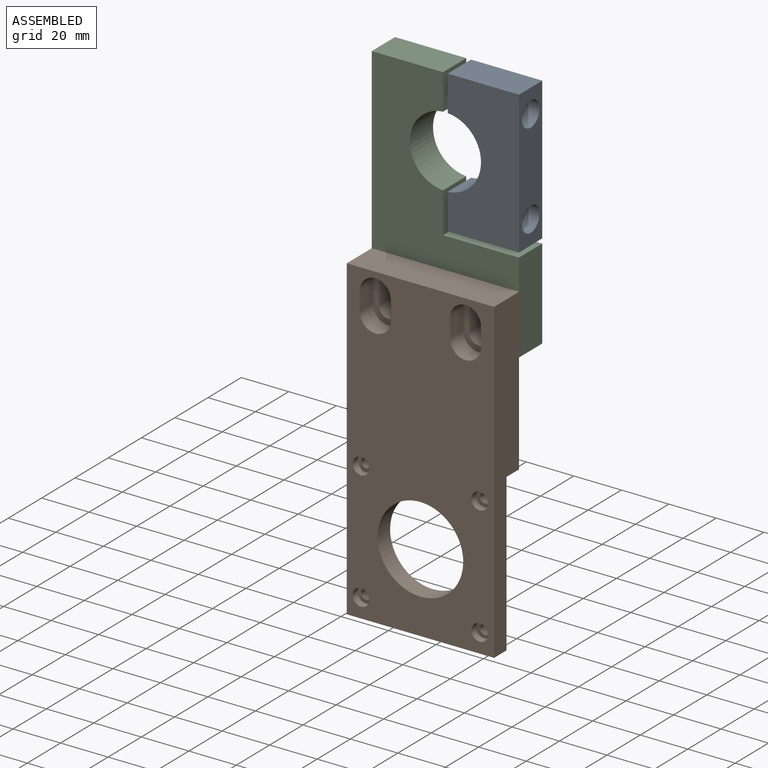
[diagram: assembled view]
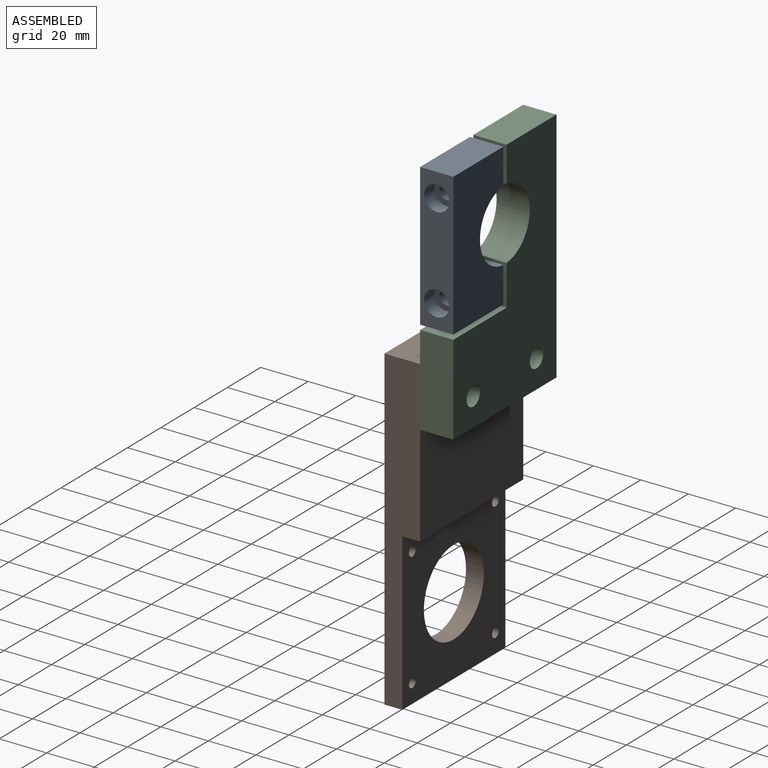
[diagram: assembled view, second angle]
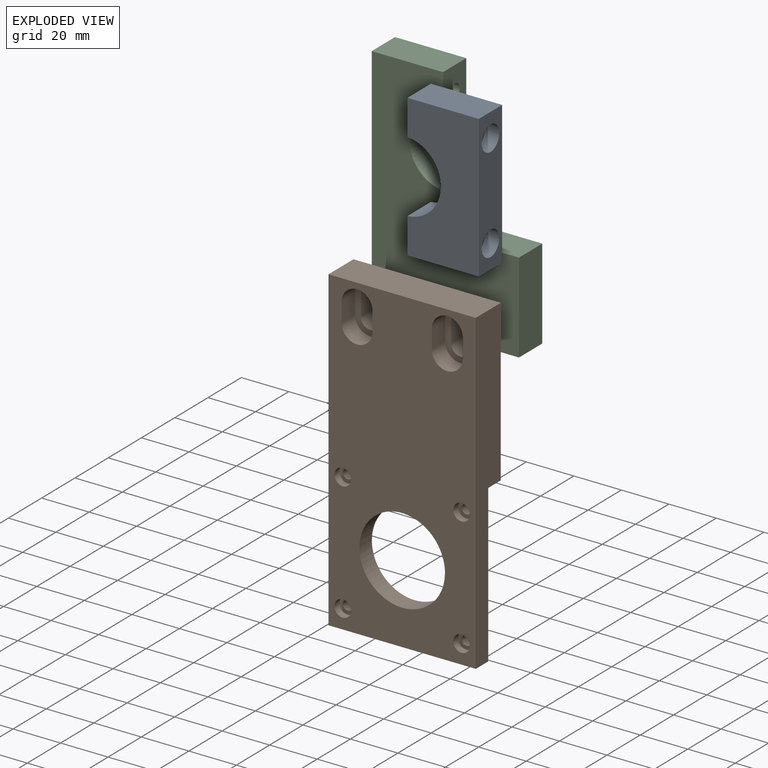
[diagram: exploded view]
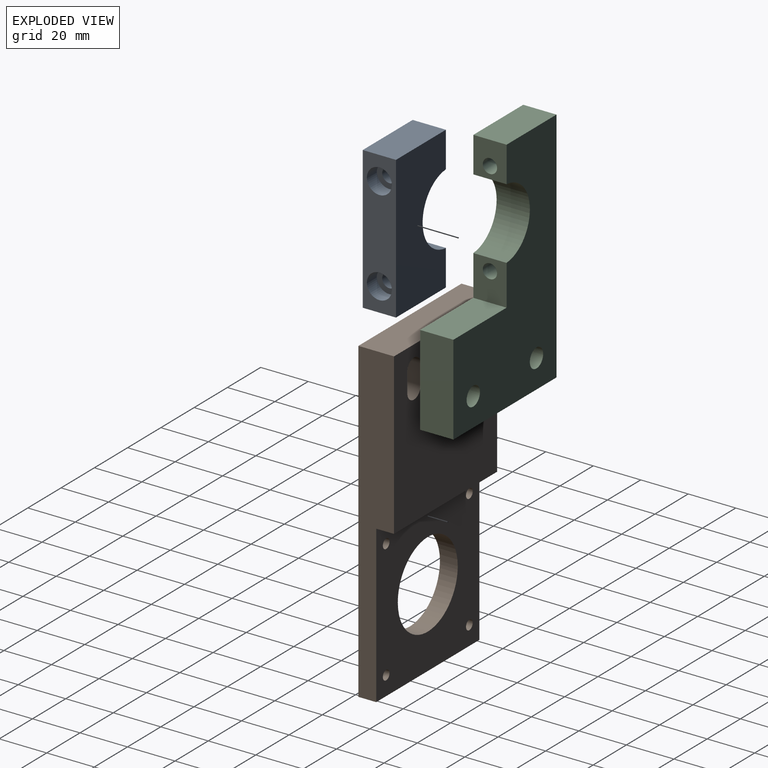
[diagram: exploded view, second angle]
ASSEMBLY  parts=3 mates=2
PART A: 18 faces, bbox 30x14x60 mm
  f0: plane 10.53x10.5mm, normal (1,0,0), area 58.3mm2, adj f1,f2,f3,f4
  f1: cylinder r=5.25mm len=10.5mm, axis (-1,0,0), area 99mm2, adj f0,f2,f7
  f2: cylinder r=5.25mm len=10.5mm, axis (-1,0,0), area 99mm2, adj f0,f1,f7
  f3: cylinder r=3mm len=24mm, axis (-1,0,0), area 226.2mm2, adj f0,f4,f9
  f4: cylinder r=3mm len=24mm, axis (-1,0,0), area 226.2mm2, adj f0,f3,f9
  f5: cylinder r=5.25mm len=10.5mm, axis (-1,0,0), area 99mm2, adj f6,f7,f10
  f6: cylinder r=5.25mm len=10.5mm, axis (-1,0,0), area 99mm2, adj f5,f7,f10
  f7: plane 60x14mm, normal (1,0,0), area 666.8mm2, adj f1,f2,f5,f6,f8,f12,f13,f14
  f8: plane 30x14mm, normal (0,0,1), area 420mm2, adj f7,f9,f12,f14
  f9: plane 15.03x14mm, normal (-1,0,0), area 182.2mm2, adj f3,f4,f8,f11,f12,f14
  f10: plane 10.53x10.5mm, normal (1,0,0), area 58.3mm2, adj f5,f6,f15,f16
  f11: cylinder r=15mm len=29.93mm, axis (0,-1,0), area 631.7mm2, adj f9,f12,f14,f17
  f12: plane 60x30mm, normal (0,1,0), area 1476.5mm2, adj f7,f8,f9,f11,f13,f17
  f13: plane 30x14mm, normal (0,0,-1), area 420mm2, adj f7,f12,f14,f17
  f14: plane 60x30mm, normal (0,-1,0), area 1476.5mm2, adj f7,f8,f9,f11,f13,f17
  f15: cylinder r=3mm len=24mm, axis (-1,0,0), area 226.2mm2, adj f10,f16,f17
  f16: cylinder r=3mm len=24mm, axis (-1,0,0), area 226.2mm2, adj f10,f15,f17
  f17: plane 15.03x14mm, normal (-1,0,0), area 182.2mm2, adj f11,f12,f13,f14,f15,f16
PART B: 48 faces, bbox 62x15x133.6 mm
  f0: plane 21.03x13.01mm, normal (0,-1,0), area 122.5mm2, adj f2,f3,f4,f5,f18,f19,f20,f21
  f1: plane 21.03x13.01mm, normal (0,-1,0), area 122.5mm2, adj f6,f7,f8,f9,f22,f23,f24,f25
  f2: cylinder r=4mm len=8mm, axis (0,-1,0), area 88mm2, adj f0,f3,f5,f26
  f3: plane 8x7mm, normal (-1,0,0), area 56mm2, adj f0,f2,f4,f26
  f4: cylinder r=4mm len=8mm, axis (0,-1,0), area 88mm2, adj f0,f3,f5,f26
  f5: plane 8x7mm, normal (1,0,0), area 56mm2, adj f0,f2,f4,f26
  f6: plane 8x7mm, normal (1,0,0), area 56mm2, adj f1,f7,f9,f26
  f7: cylinder r=4mm len=8mm, axis (0,-1,0), area 88mm2, adj f1,f6,f8,f26
  f8: plane 8x7mm, normal (-1,0,0), area 56mm2, adj f1,f7,f9,f26
  f9: cylinder r=4mm len=8mm, axis (0,-1,0), area 88mm2, adj f1,f6,f8,f26
  f10: cylinder r=3.5mm len=7mm, axis (0,1,0), area 33mm2, adj f11,f28,f32
  f11: cylinder r=3.5mm len=7mm, axis (0,1,0), area 33mm2, adj f10,f28,f32
  f12: cylinder r=3.5mm len=7mm, axis (0,1,0), area 33mm2, adj f13,f29,f32
  f13: cylinder r=3.5mm len=7mm, axis (0,1,0), area 33mm2, adj f12,f29,f32
  f14: cylinder r=3.5mm len=7mm, axis (0,1,0), area 33mm2, adj f15,f30,f32
  f15: cylinder r=3.5mm len=7mm, axis (0,1,0), area 33mm2, adj f14,f30,f32
  f16: cylinder r=3.5mm len=7mm, axis (0,1,0), area 33mm2, adj f17,f31,f32
  f17: cylinder r=3.5mm len=7mm, axis (0,1,0), area 33mm2, adj f16,f31,f32
  f18: plane 8x8mm, normal (-1,0,0), area 64mm2, adj f0,f19,f21,f32
  f19: cylinder r=6.5mm len=13mm, axis (0,-1,0), area 163.4mm2, adj f0,f18,f20,f32
  f20: plane 8x8mm, normal (1,0,0), area 64mm2, adj f0,f19,f21,f32
  f21: cylinder r=6.5mm len=13mm, axis (0,-1,0), area 163.4mm2, adj f0,f18,f20,f32
  f22: plane 8x8mm, normal (-1,0,0), area 64mm2, adj f1,f23,f25,f32
  f23: cylinder r=6.5mm len=13mm, axis (0,-1,0), area 163.4mm2, adj f1,f22,f24,f32
  f24: plane 8x8mm, normal (1,0,0), area 64mm2, adj f1,f23,f25,f32
  f25: cylinder r=6.5mm len=13mm, axis (0,-1,0), area 163.4mm2, adj f1,f22,f24,f32
  f26: plane 67.55x62mm, normal (0,1,0), area 3959.6mm2, adj f2,f3,f4,f5,f6,f7,f8,f9
  f27: plane 62x15mm, normal (0,0,1), area 930mm2, adj f26,f32,f34,f36
  f28: plane 7.02x7.01mm, normal (0,-1,0), area 25.9mm2, adj f10,f11,f37,f38
  f29: plane 7.02x7.01mm, normal (0,-1,0), area 25.9mm2, adj f12,f13,f39,f40
  f30: plane 7.02x7.01mm, normal (0,-1,0), area 25.9mm2, adj f14,f15,f41,f42
  f31: plane 7.02x7.01mm, normal (0,-1,0), area 25.9mm2, adj f16,f17,f43,f44
  f32: plane 133.55x62mm, normal (0,-1,0), area 6632.6mm2, adj f10,f11,f12,f13,f14,f15,f16,f17
  f33: plane 62x7.5mm, normal (0,0,-1), area 465mm2, adj f26,f34,f36,f47
  f34: plane 133.55x15mm, normal (-1,0,0), area 1508.2mm2, adj f26,f27,f32,f33,f35,f47
  f35: plane 62x7.5mm, normal (0,0,-1), area 465mm2, adj f32,f34,f36,f47
  f36: plane 133.55x15mm, normal (1,0,0), area 1508.2mm2, adj f26,f27,f32,f33,f35,f47
  f37: cylinder r=2mm len=4.5mm, axis (0,1,0), area 28.3mm2, adj f28,f38,f47
  f38: cylinder r=2mm len=4.5mm, axis (0,1,0), area 28.3mm2, adj f28,f37,f47
  f39: cylinder r=2mm len=4.5mm, axis (0,1,0), area 28.3mm2, adj f29,f40,f47
  f40: cylinder r=2mm len=4.5mm, axis (0,1,0), area 28.3mm2, adj f29,f39,f47
  f41: cylinder r=2mm len=4.5mm, axis (0,1,0), area 28.3mm2, adj f30,f42,f47
  f42: cylinder r=2mm len=4.5mm, axis (0,1,0), area 28.3mm2, adj f30,f41,f47
  f43: cylinder r=2mm len=4.5mm, axis (0,1,0), area 28.3mm2, adj f31,f44,f47
  f44: cylinder r=2mm len=4.5mm, axis (0,1,0), area 28.3mm2, adj f31,f43,f47
  f45: cylinder r=18.02mm len=36.04mm, axis (0,-1,0), area 424.6mm2, adj f32,f46,f47
  f46: cylinder r=18.02mm len=36.04mm, axis (0,-1,0), area 424.6mm2, adj f32,f45,f47
  f47: plane 66x62mm, normal (0,1,0), area 3021.7mm2, adj f33,f34,f35,f36,f37,f38,f39,f40
PART C: 18 faces, bbox 62x14x100 mm
  f0: cylinder r=3mm len=30mm, axis (-1,0,0), area 282.7mm2, adj f1,f7,f13
  f1: cylinder r=3mm len=30mm, axis (-1,0,0), area 282.7mm2, adj f0,f7,f13
  f2: cylinder r=3mm len=30mm, axis (-1,0,0), area 282.7mm2, adj f3,f5,f13
  f3: cylinder r=3mm len=30mm, axis (-1,0,0), area 282.7mm2, adj f2,f5,f13
  f4: plane 32x14mm, normal (0,0,1), area 448mm2, adj f5,f14,f15,f16
  f5: plane 17.03x14mm, normal (1,0,0), area 210.2mm2, adj f2,f3,f4,f6,f14,f16
  f6: cylinder r=15mm len=29.93mm, axis (0,-1,0), area 631.7mm2, adj f5,f7,f14,f16
  f7: plane 15.03x14mm, normal (1,0,0), area 182.2mm2, adj f0,f1,f6,f8,f14,f16
  f8: plane 30x14mm, normal (0,0,1), area 420mm2, adj f7,f13,f14,f16
  f9: cylinder r=4mm len=14mm, axis (0,1,0), area 175.9mm2, adj f10,f14,f16
  f10: cylinder r=4mm len=14mm, axis (0,1,0), area 175.9mm2, adj f9,f14,f16
  f11: cylinder r=4mm len=14mm, axis (0,1,0), area 175.9mm2, adj f12,f14,f16
  f12: cylinder r=4mm len=14mm, axis (0,1,0), area 175.9mm2, adj f11,f14,f16
  f13: plane 100x14mm, normal (-1,0,0), area 1343.5mm2, adj f0,f1,f2,f3,f8,f14,f16,f17
  f14: plane 100x62mm, normal (0,1,0), area 3792mm2, adj f4,f5,f6,f7,f8,f9,f10,f11
  f15: plane 38x14mm, normal (1,0,0), area 532mm2, adj f4,f14,f16,f17
  f16: plane 100x62mm, normal (0,-1,0), area 3792mm2, adj f4,f5,f6,f7,f8,f9,f10,f11
  f17: plane 62x14mm, normal (0,0,-1), area 868mm2, adj f13,f14,f15,f16
PLACE A t=(-404.32,-108.15,76.57)mm
PLACE B t=(-404.32,-107.62,76.57)mm
PLACE C t=(-404.32,-108.15,76.57)mm
MATE fastened C.f16 <-> A.f14  axis (0,-1,0) through (-405.32,-108.15,106.57)mm
MATE fastened C.f11 <-> B.f26  axis (0,1,0) through (-423.32,-108.15,18.57)mm
